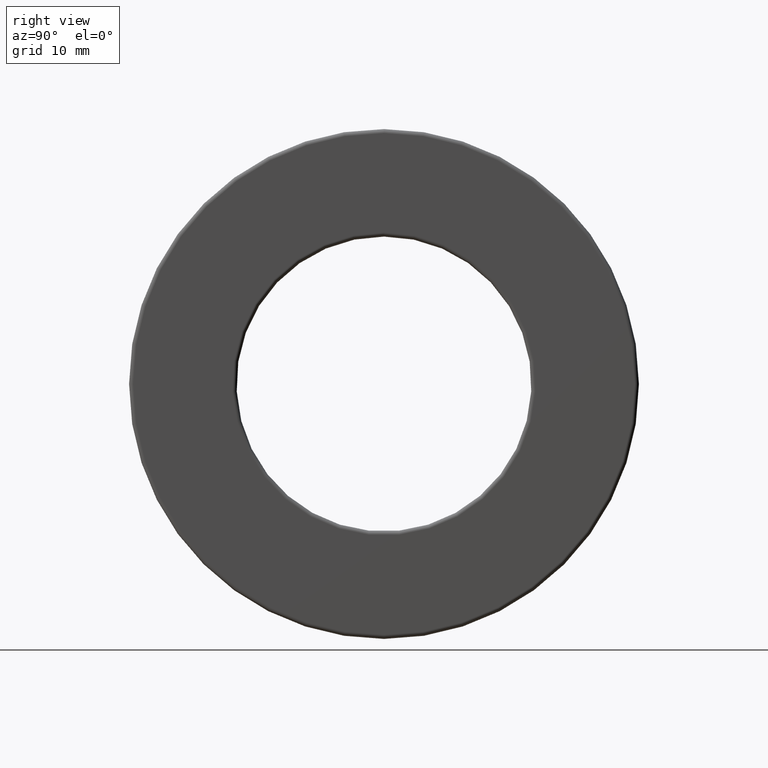
[diagram: clean part render]
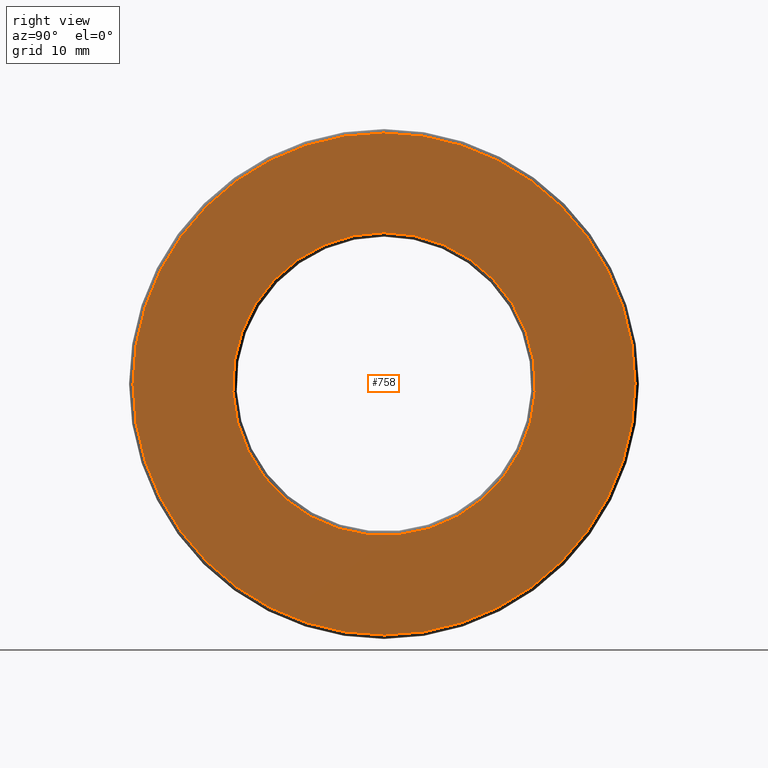
[diagram: same view with one face highlighted and labeled with its STEP entity id]
A machine part, right view. The second image highlights one B-rep face of the part: STEP entity #758.
In plain terms, the highlighted planar face has unit normal (1, 0, 0).
Its self-contained STEP definition (entity closure, byte-faithful):
#28 = CARTESIAN_POINT ( 'NONE',  ( 0.3125000000000000000, 0.0000000000000000000, 0.0000000000000000000 ) ) ;
#150 = EDGE_CURVE ( 'NONE', #237, #237, #1451, .T. ) ;
#184 = ORIENTED_EDGE ( 'NONE', *, *, #150, .T. ) ;
#237 = VERTEX_POINT ( 'NONE', #511 ) ;
#295 = ORIENTED_EDGE ( 'NONE', *, *, #787, .F. ) ;
#336 = PLANE ( 'NONE',  #1177 ) ;
#460 = AXIS2_PLACEMENT_3D ( 'NONE', #28, #940, #1257 ) ;
#511 = CARTESIAN_POINT ( 'NONE',  ( 0.3125000000000000000, 0.0000000000000000000, 0.7700000000000000200 ) ) ;
#552 = DIRECTION ( 'NONE',  ( 1.000000000000000000, 0.0000000000000000000, 0.0000000000000000000 ) ) ;
#566 = VERTEX_POINT ( 'NONE', #947 ) ;
#590 = DIRECTION ( 'NONE',  ( 0.0000000000000000000, 0.0000000000000000000, -1.000000000000000000 ) ) ;
#624 = EDGE_LOOP ( 'NONE', ( #295 ) ) ;
#669 = CIRCLE ( 'NONE', #822, 1.276874999999999800 ) ;
#758 = ADVANCED_FACE ( 'NONE', ( #912, #1215 ), #336, .T. ) ;
#787 = EDGE_CURVE ( 'NONE', #566, #566, #669, .T. ) ;
#822 = AXIS2_PLACEMENT_3D ( 'NONE', #865, #994, #1098 ) ;
#865 = CARTESIAN_POINT ( 'NONE',  ( 0.3125000000000000000, 0.0000000000000000000, 0.0000000000000000000 ) ) ;
#912 = FACE_BOUND ( 'NONE', #1131, .T. ) ;
#940 = DIRECTION ( 'NONE',  ( -1.000000000000000000, -0.0000000000000000000, -0.0000000000000000000 ) ) ;
#947 = CARTESIAN_POINT ( 'NONE',  ( 0.3125000000000000000, 0.0000000000000000000, 1.276874999999999800 ) ) ;
#994 = DIRECTION ( 'NONE',  ( -1.000000000000000000, -0.0000000000000000000, -0.0000000000000000000 ) ) ;
#1098 = DIRECTION ( 'NONE',  ( 0.0000000000000000000, 0.0000000000000000000, 1.000000000000000000 ) ) ;
#1131 = EDGE_LOOP ( 'NONE', ( #184 ) ) ;
#1177 = AXIS2_PLACEMENT_3D ( 'NONE', #1233, #552, #590 ) ;
#1215 = FACE_OUTER_BOUND ( 'NONE', #624, .T. ) ;
#1233 = CARTESIAN_POINT ( 'NONE',  ( 0.3125000000000000000, 0.0000000000000000000, 0.0000000000000000000 ) ) ;
#1257 = DIRECTION ( 'NONE',  ( 0.0000000000000000000, 0.0000000000000000000, 1.000000000000000000 ) ) ;
#1451 = CIRCLE ( 'NONE', #460, 0.7700000000000000200 ) ;